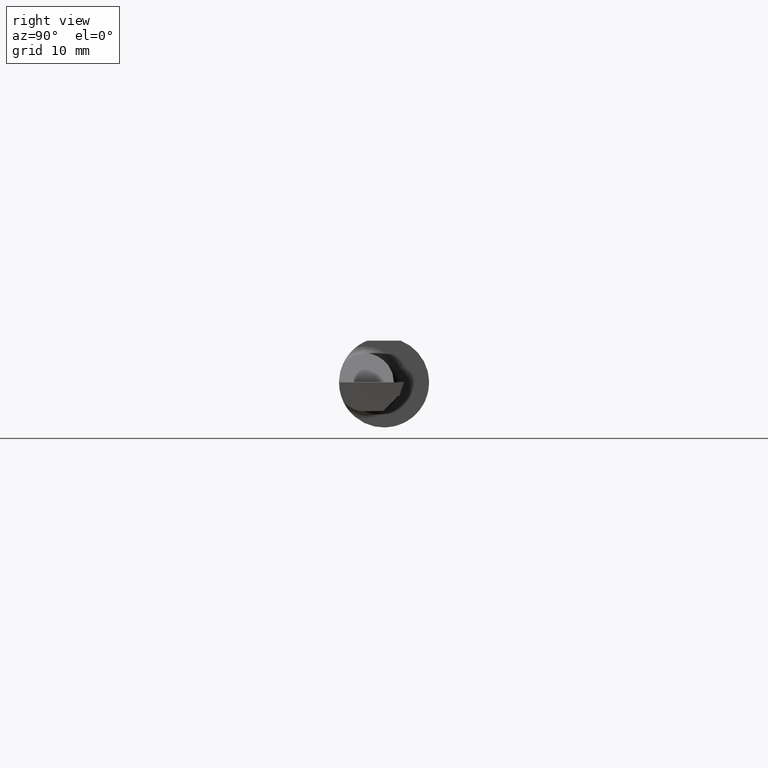
[diagram: clean part render]
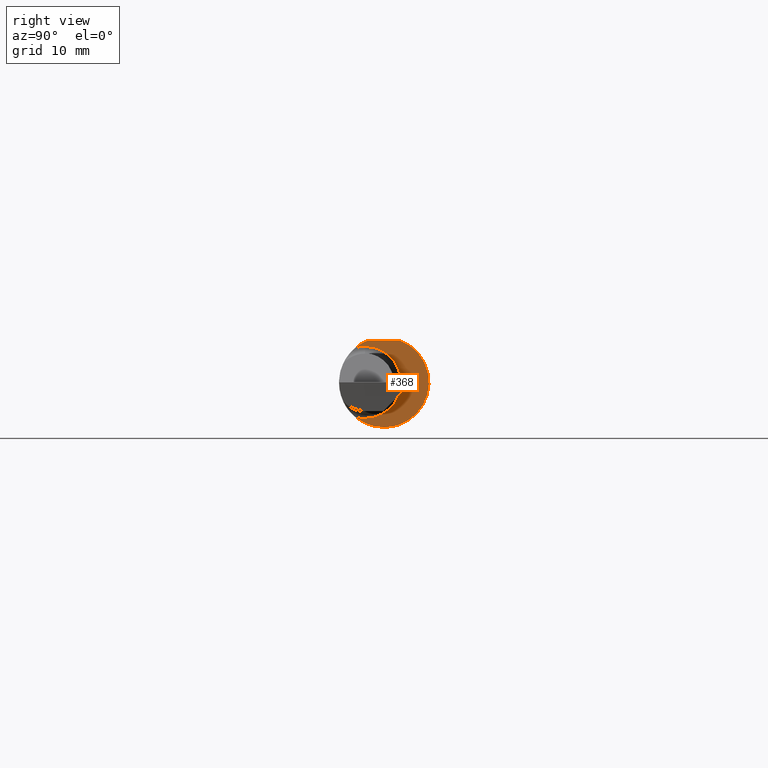
[diagram: same view with one face highlighted and labeled with its STEP entity id]
A machine part, right view. The second image highlights one B-rep face of the part: STEP entity #368.
In plain terms, the highlighted planar face has unit normal (1, 0, 0).
Its self-contained STEP definition (entity closure, byte-faithful):
#12 = EDGE_CURVE ( 'NONE', #774, #616, #851, .T. ) ;
#20 = PLANE ( 'NONE',  #1088 ) ;
#30 = CARTESIAN_POINT ( 'NONE',  ( 33.02000000000001023, -1.462034237629201483, 3.685539999999999150 ) ) ;
#53 = CARTESIAN_POINT ( 'NONE',  ( 33.02000000000001023, 0.000000000000000000, 0.000000000000000000 ) ) ;
#86 = AXIS2_PLACEMENT_3D ( 'NONE', #675, #199, #1241 ) ;
#115 = EDGE_LOOP ( 'NONE', ( #1150, #416, #999, #721, #242, #1229 ) ) ;
#132 = CARTESIAN_POINT ( 'NONE',  ( 33.02000000000001023, 2.540000000000000480, 3.685539999999999150 ) ) ;
#136 = DIRECTION ( 'NONE',  ( 0.000000000000000000, 0.000000000000000000, -1.000000000000000000 ) ) ;
#157 = CARTESIAN_POINT ( 'NONE',  ( 33.02000000000001023, -1.678939999999999433, 0.000000000000000000 ) ) ;
#199 = DIRECTION ( 'NONE',  ( -1.000000000000000000, -0.000000000000000000, -0.000000000000000000 ) ) ;
#205 = VECTOR ( 'NONE', #1078, 1000.000000000000000 ) ;
#242 = ORIENTED_EDGE ( 'NONE', *, *, #803, .T. ) ;
#243 = CIRCLE ( 'NONE', #948, 3.175000000000000266 ) ;
#283 = AXIS2_PLACEMENT_3D ( 'NONE', #157, #812, #357 ) ;
#324 = VERTEX_POINT ( 'NONE', #30 ) ;
#338 = EDGE_CURVE ( 'NONE', #759, #324, #1193, .T. ) ;
#357 = DIRECTION ( 'NONE',  ( 0.000000000000000000, 0.000000000000000000, -1.000000000000000000 ) ) ;
#368 = ADVANCED_FACE ( 'NONE', ( #798 ), #20, .T. ) ;
#416 = ORIENTED_EDGE ( 'NONE', *, *, #12, .T. ) ;
#434 = CARTESIAN_POINT ( 'NONE',  ( 33.02000000000001023, -2.519138184568832983, 3.061811883615197072 ) ) ;
#498 = EDGE_CURVE ( 'NONE', #324, #774, #1232, .T. ) ;
#518 = CARTESIAN_POINT ( 'NONE',  ( 33.02000000000001023, 0.000000000000000000, 0.000000000000000000 ) ) ;
#616 = VERTEX_POINT ( 'NONE', #945 ) ;
#640 = CARTESIAN_POINT ( 'NONE',  ( 33.02000000000001023, -1.678939999999999433, -3.175000000000000266 ) ) ;
#675 = CARTESIAN_POINT ( 'NONE',  ( 33.02000000000001023, -1.678939999999999433, 0.000000000000000000 ) ) ;
#683 = EDGE_CURVE ( 'NONE', #1079, #1021, #830, .T. ) ;
#699 = DIRECTION ( 'NONE',  ( 1.000000000000000000, 0.000000000000000000, 0.000000000000000000 ) ) ;
#718 = DIRECTION ( 'NONE',  ( 1.000000000000000000, 0.000000000000000000, 0.000000000000000000 ) ) ;
#721 = ORIENTED_EDGE ( 'NONE', *, *, #683, .T. ) ;
#741 = EDGE_CURVE ( 'NONE', #616, #1079, #243, .T. ) ;
#759 = VERTEX_POINT ( 'NONE', #1087 ) ;
#774 = VERTEX_POINT ( 'NONE', #434 ) ;
#791 = DIRECTION ( 'NONE',  ( 0.000000000000000000, 0.000000000000000000, -1.000000000000000000 ) ) ;
#798 = FACE_OUTER_BOUND ( 'NONE', #115, .T. ) ;
#803 = EDGE_CURVE ( 'NONE', #1021, #759, #889, .T. ) ;
#812 = DIRECTION ( 'NONE',  ( -1.000000000000000000, -0.000000000000000000, -0.000000000000000000 ) ) ;
#828 = CARTESIAN_POINT ( 'NONE',  ( 33.02000000000001023, -2.519138184568832983, -3.061811883615197072 ) ) ;
#830 = CIRCLE ( 'NONE', #86, 3.175000000000000266 ) ;
#851 = CIRCLE ( 'NONE', #283, 3.175000000000000266 ) ;
#874 = AXIS2_PLACEMENT_3D ( 'NONE', #518, #699, #136 ) ;
#876 = CARTESIAN_POINT ( 'NONE',  ( 33.02000000000001023, -1.678939999999999433, 0.000000000000000000 ) ) ;
#889 = CIRCLE ( 'NONE', #874, 3.964939999999999465 ) ;
#930 = AXIS2_PLACEMENT_3D ( 'NONE', #53, #1011, #1112 ) ;
#945 = CARTESIAN_POINT ( 'NONE',  ( 33.02000000000001023, -1.678939999999998989, 3.175000000000000266 ) ) ;
#948 = AXIS2_PLACEMENT_3D ( 'NONE', #876, #984, #791 ) ;
#984 = DIRECTION ( 'NONE',  ( -1.000000000000000000, -0.000000000000000000, -0.000000000000000000 ) ) ;
#999 = ORIENTED_EDGE ( 'NONE', *, *, #741, .T. ) ;
#1003 = DIRECTION ( 'NONE',  ( 0.000000000000000000, 0.000000000000000000, -1.000000000000000000 ) ) ;
#1011 = DIRECTION ( 'NONE',  ( 1.000000000000000000, 0.000000000000000000, 0.000000000000000000 ) ) ;
#1021 = VERTEX_POINT ( 'NONE', #828 ) ;
#1078 = DIRECTION ( 'NONE',  ( 0.000000000000000000, -1.000000000000000000, 0.000000000000000000 ) ) ;
#1079 = VERTEX_POINT ( 'NONE', #640 ) ;
#1087 = CARTESIAN_POINT ( 'NONE',  ( 33.02000000000001023, 1.462034237629201039, 3.685539999999999150 ) ) ;
#1088 = AXIS2_PLACEMENT_3D ( 'NONE', #1104, #718, #1003 ) ;
#1104 = CARTESIAN_POINT ( 'NONE',  ( 33.02000000000001023, 4.671060000000001544, 0.000000000000000000 ) ) ;
#1112 = DIRECTION ( 'NONE',  ( 0.000000000000000000, 0.000000000000000000, -1.000000000000000000 ) ) ;
#1150 = ORIENTED_EDGE ( 'NONE', *, *, #498, .T. ) ;
#1193 = LINE ( 'NONE', #132, #205 ) ;
#1229 = ORIENTED_EDGE ( 'NONE', *, *, #338, .T. ) ;
#1232 = CIRCLE ( 'NONE', #930, 3.964939999999999465 ) ;
#1241 = DIRECTION ( 'NONE',  ( 0.000000000000000000, 0.000000000000000000, -1.000000000000000000 ) ) ;